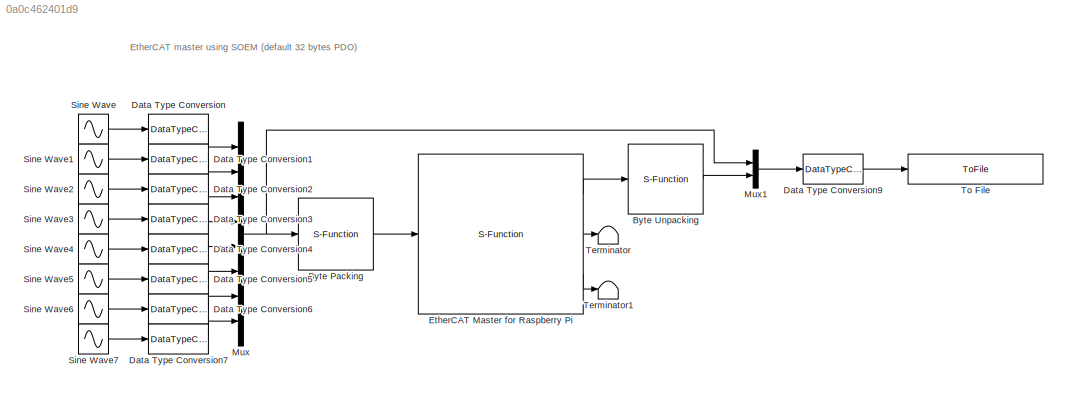
MODEL slx_0a0c462401d9
KIND model
CONFIG AbsTol = auto
CONFIG EnableMultiTasking = on
CONFIG FixedStep = auto
CONFIG MaxStep = auto
CONFIG MinStep = auto
CONFIG RelTol = 1e-3
CONFIG SampleTimeConstraint = Unconstrained
CONFIG Solver = ode45
CONFIG SolverName = ode45
CONFIG StartTime = 0.0
CONFIG StopTime = 10.0
BLOCK [S-Function] Byte Packing
  CopyFcn = set_param(gcbh,'LinkStatus','none')
  EnableBusSupport = off
  FunctionName = Pack
  InitFcn = try, set_param(gcb,'FunctionName','Pack'), end
  OpenFcn = sfunctionwizard(gcbh)
  Ports = [1, 1]
  PreSaveFcn = try, set_param(gcb,'FunctionName','Pack'), end
  SFcnIsStateOwnerBlock = off
  SFunctionDeploymentMode = off
  SFunctionModules = Pack_wrapper
BLOCK [S-Function] Byte Unpacking
  CopyFcn = set_param(gcbh,'LinkStatus','none')
  EnableBusSupport = off
  FunctionName = Unpack
  InitFcn = try, set_param(gcb,'FunctionName','Unpack'), end
  OpenFcn = sfunctionwizard(gcbh)
  Ports = [1, 1]
  PreSaveFcn = try, set_param(gcb,'FunctionName','Unpack'), end
  SFcnIsStateOwnerBlock = off
  SFunctionDeploymentMode = off
  SFunctionModules = Unpack_wrapper
BLOCK [DataTypeConversion] Data Type Conversion
  OutDataTypeStr = single
  RndMeth = Floor
  SaturateOnIntegerOverflow = off
BLOCK [DataTypeConversion] Data Type Conversion1
  OutDataTypeStr = single
  RndMeth = Floor
  SaturateOnIntegerOverflow = off
BLOCK [DataTypeConversion] Data Type Conversion2
  OutDataTypeStr = single
  RndMeth = Floor
  SaturateOnIntegerOverflow = off
BLOCK [DataTypeConversion] Data Type Conversion3
  OutDataTypeStr = single
  RndMeth = Floor
  SaturateOnIntegerOverflow = off
BLOCK [DataTypeConversion] Data Type Conversion4
  OutDataTypeStr = single
  RndMeth = Floor
  SaturateOnIntegerOverflow = off
BLOCK [DataTypeConversion] Data Type Conversion5
  OutDataTypeStr = single
  RndMeth = Floor
  SaturateOnIntegerOverflow = off
BLOCK [DataTypeConversion] Data Type Conversion6
  OutDataTypeStr = single
  RndMeth = Floor
  SaturateOnIntegerOverflow = off
BLOCK [DataTypeConversion] Data Type Conversion7
  OutDataTypeStr = single
  RndMeth = Floor
  SaturateOnIntegerOverflow = off
BLOCK [DataTypeConversion] Data Type Conversion9
  OutDataTypeStr = double
  RndMeth = Floor
  SaturateOnIntegerOverflow = off
BLOCK [S-Function] EtherCAT Master for Raspberry Pi
  CopyFcn = set_param(gcbh,'LinkStatus','none')
  EnableBusSupport = off
  FunctionName = SOEM_raspberrypi
  InitFcn = try, set_param(gcb,'FunctionName','SOEM_raspberrypi'), end
  OpenFcn = sfunctionwizard(gcbh)
  Parameters = uint32(2)
  Ports = [1, 3]
  PreSaveFcn = try, set_param(gcb,'FunctionName','SOEM_raspberrypi'), end
  SFcnIsStateOwnerBlock = off
  SFunctionDeploymentMode = off
  SFunctionModules = SOEM_raspberrypi_wrapper
BLOCK [Mux] Mux
  DisplayOption = bar
  Inputs = 8
  Ports = [8, 1]
BLOCK [Mux] Mux1
  DisplayOption = bar
  Inputs = 2
  Ports = [2, 1]
BLOCK [Sin] Sine Wave
  Ports = [0, 1]
  SampleTime = 0.05
  Samples = 20
  SineType = Sample based
BLOCK [Sin] Sine Wave1
  Bias = 1
  Ports = [0, 1]
  SampleTime = 0.05
  Samples = 20
  SineType = Sample based
BLOCK [Sin] Sine Wave2
  Bias = 2
  Ports = [0, 1]
  SampleTime = 0.05
  Samples = 20
  SineType = Sample based
BLOCK [Sin] Sine Wave3
  Bias = 3
  Ports = [0, 1]
  SampleTime = 0.05
  Samples = 20
  SineType = Sample based
BLOCK [Sin] Sine Wave4
  Bias = 4
  Ports = [0, 1]
  SampleTime = 0.05
  Samples = 20
  SineType = Sample based
BLOCK [Sin] Sine Wave5
  Bias = 5
  Ports = [0, 1]
  SampleTime = 0.05
  Samples = 20
  SineType = Sample based
BLOCK [Sin] Sine Wave6
  Bias = 6
  Ports = [0, 1]
  SampleTime = 0.05
  Samples = 20
  SineType = Sample based
BLOCK [Sin] Sine Wave7
  Bias = 7
  Ports = [0, 1]
  SampleTime = 0.05
  Samples = 20
  SineType = Sample based
BLOCK [Terminator] Terminator
BLOCK [Terminator] Terminator1
BLOCK [ToFile] To File
  Filename = transfer_data.mat
  MatrixName = dataTransfer
  Ports = [1]
ANNOTATION (root): EtherCAT master using SOEM (default 32 bytes PDO)
LINE Byte Packing:1 -> EtherCAT Master for Raspberry Pi:1
LINE Byte Unpacking:1 -> Mux1:2
LINE Data Type Conversion1:1 -> Mux:2
LINE Data Type Conversion2:1 -> Mux:3
LINE Data Type Conversion3:1 -> Mux:4
LINE Data Type Conversion4:1 -> Mux:5
LINE Data Type Conversion5:1 -> Mux:6
LINE Data Type Conversion6:1 -> Mux:7
LINE Data Type Conversion7:1 -> Mux:8
LINE Data Type Conversion9:1 -> To File:1
LINE Data Type Conversion:1 -> Mux:1
LINE EtherCAT Master for Raspberry Pi:1 -> Byte Unpacking:1
LINE EtherCAT Master for Raspberry Pi:2 -> Terminator:1
LINE EtherCAT Master for Raspberry Pi:3 -> Terminator1:1
LINE Mux1:1 -> Data Type Conversion9:1
NET Mux:1 -> Byte Packing:1, Mux1:1
LINE Sine Wave1:1 -> Data Type Conversion1:1
LINE Sine Wave2:1 -> Data Type Conversion2:1
LINE Sine Wave3:1 -> Data Type Conversion3:1
LINE Sine Wave4:1 -> Data Type Conversion4:1
LINE Sine Wave5:1 -> Data Type Conversion5:1
LINE Sine Wave6:1 -> Data Type Conversion6:1
LINE Sine Wave7:1 -> Data Type Conversion7:1
LINE Sine Wave:1 -> Data Type Conversion:1
note: NET lines group one-source signal fan-out (src -> all destinations, sorted); 1:1 wires keep LINE
